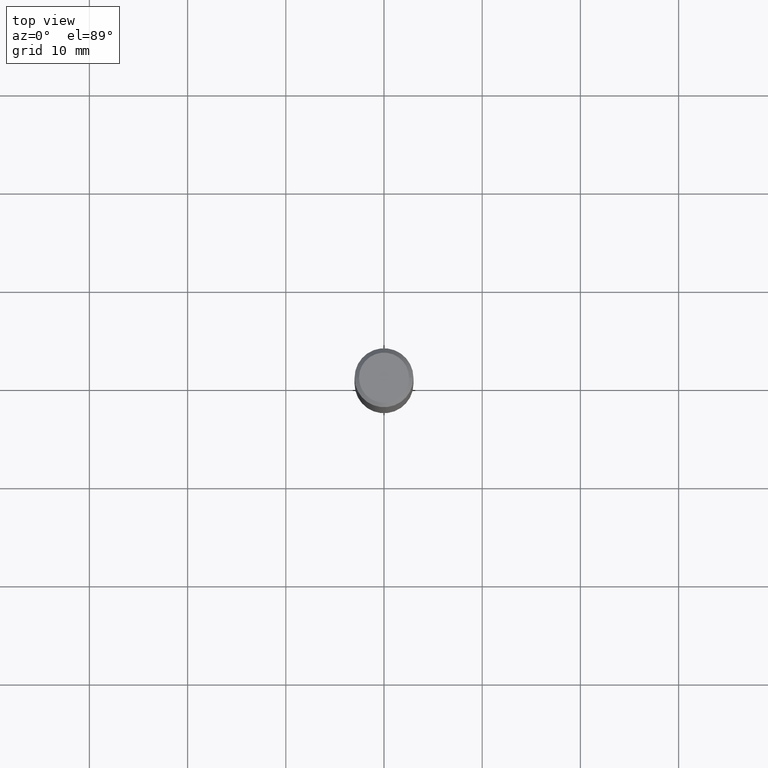
[diagram: clean part render]
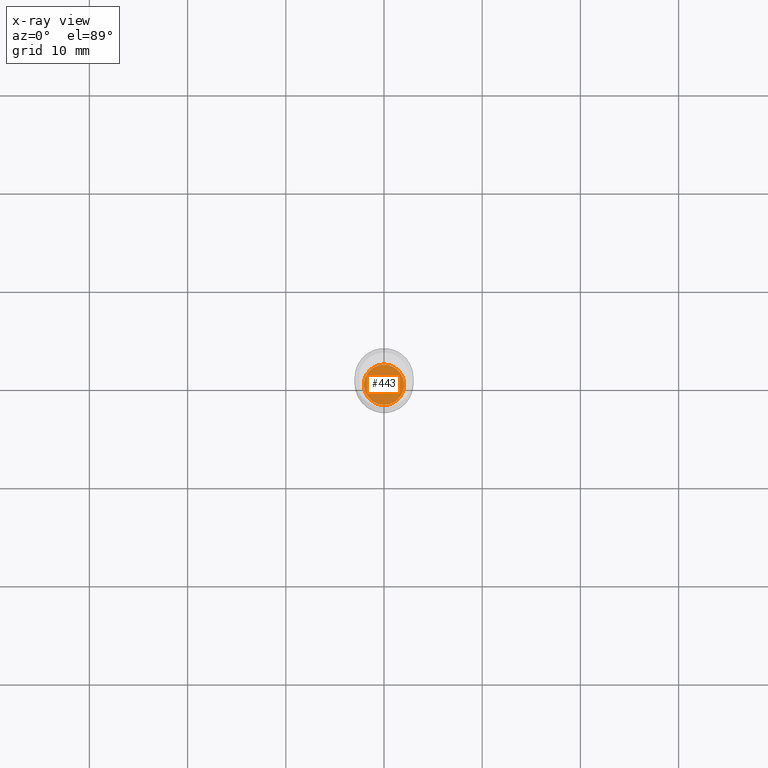
[diagram: x-ray — body ghosted, one internal face saturated and labeled with its STEP entity id]
A machine part, top view, then the same camera in x-ray: the body is ghosted and one INTERNAL B-rep face — a face not visible from any outside direction — is saturated and labeled: STEP entity #443.
In plain terms, the highlighted planar face has unit normal (0, -0, -1).
Its self-contained STEP definition (entity closure, byte-faithful):
#2 = ORIENTED_EDGE ( 'NONE', *, *, #299, .T. ) ;
#14 = CARTESIAN_POINT ( 'NONE',  ( 4.053364546251863371E-29, -5.787130319132513889E-15, -1.657499999999999973 ) ) ;
#83 = CIRCLE ( 'NONE', #308, 0.08069999999999999396 ) ;
#87 = DIRECTION ( 'NONE',  ( 6.982962677686265922E-15, 1.000000000000000000, -3.491481836966133799E-15 ) ) ;
#89 = EDGE_CURVE ( 'NONE', #450, #266, #152, .T. ) ;
#111 = EDGE_LOOP ( 'NONE', ( #261, #2 ) ) ;
#149 = CARTESIAN_POINT ( 'NONE',  ( -5.635250880892411374E-16, -0.08070000000000578100, -1.657499999999999751 ) ) ;
#151 = PLANE ( 'NONE',  #159 ) ;
#152 = CIRCLE ( 'NONE', #222, 0.08069999999999999396 ) ;
#159 = AXIS2_PLACEMENT_3D ( 'NONE', #269, #380, #87 ) ;
#181 = CARTESIAN_POINT ( 'NONE',  ( 5.734079877584715087E-16, 0.08069999999999420692, -1.657500000000000195 ) ) ;
#204 = FACE_OUTER_BOUND ( 'NONE', #111, .T. ) ;
#222 = AXIS2_PLACEMENT_3D ( 'NONE', #14, #433, #242 ) ;
#242 = DIRECTION ( 'NONE',  ( -6.982962677686266711E-15, -1.000000000000000000, 3.385189583227092077E-15 ) ) ;
#261 = ORIENTED_EDGE ( 'NONE', *, *, #89, .T. ) ;
#266 = VERTEX_POINT ( 'NONE', #181 ) ;
#269 = CARTESIAN_POINT ( 'NONE',  ( 4.053364546251863371E-29, -5.787130319132513889E-15, -1.657499999999999973 ) ) ;
#299 = EDGE_CURVE ( 'NONE', #266, #450, #83, .T. ) ;
#308 = AXIS2_PLACEMENT_3D ( 'NONE', #486, #487, #333 ) ;
#333 = DIRECTION ( 'NONE',  ( -6.982962677686266711E-15, -1.000000000000000000, 3.385189583227092077E-15 ) ) ;
#380 = DIRECTION ( 'NONE',  ( 2.445468458347712625E-29, -3.491481836966133799E-15, -1.000000000000000000 ) ) ;
#433 = DIRECTION ( 'NONE',  ( -2.445468458347713186E-29, 3.491481836966133799E-15, 1.000000000000000000 ) ) ;
#443 = ADVANCED_FACE ( 'NONE', ( #204 ), #151, .F. ) ;
#450 = VERTEX_POINT ( 'NONE', #149 ) ;
#486 = CARTESIAN_POINT ( 'NONE',  ( 4.053364546251863371E-29, -5.787130319132513889E-15, -1.657499999999999973 ) ) ;
#487 = DIRECTION ( 'NONE',  ( -2.445468458347713186E-29, 3.491481836966133799E-15, 1.000000000000000000 ) ) ;